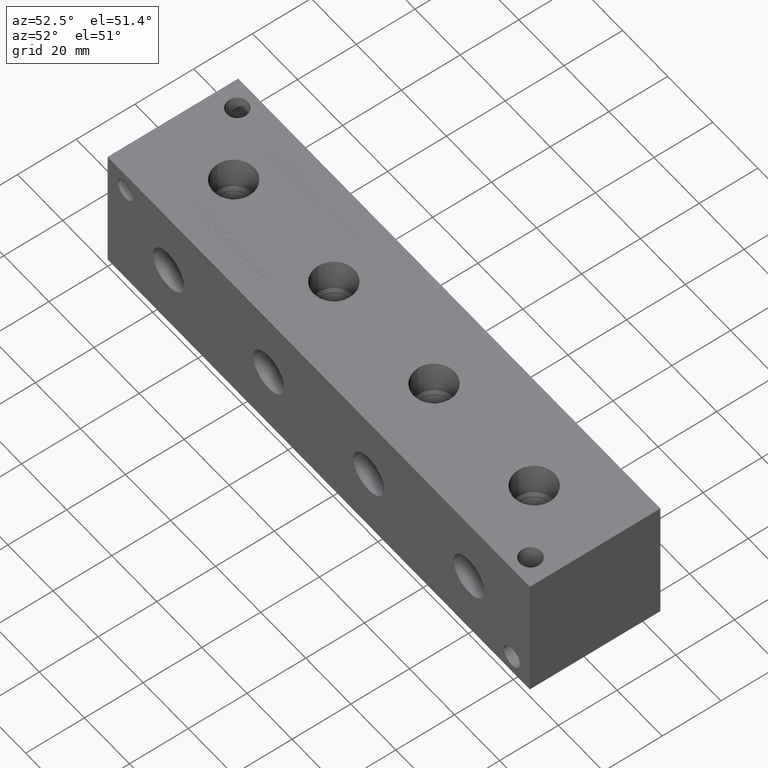
[diagram: clean part render]
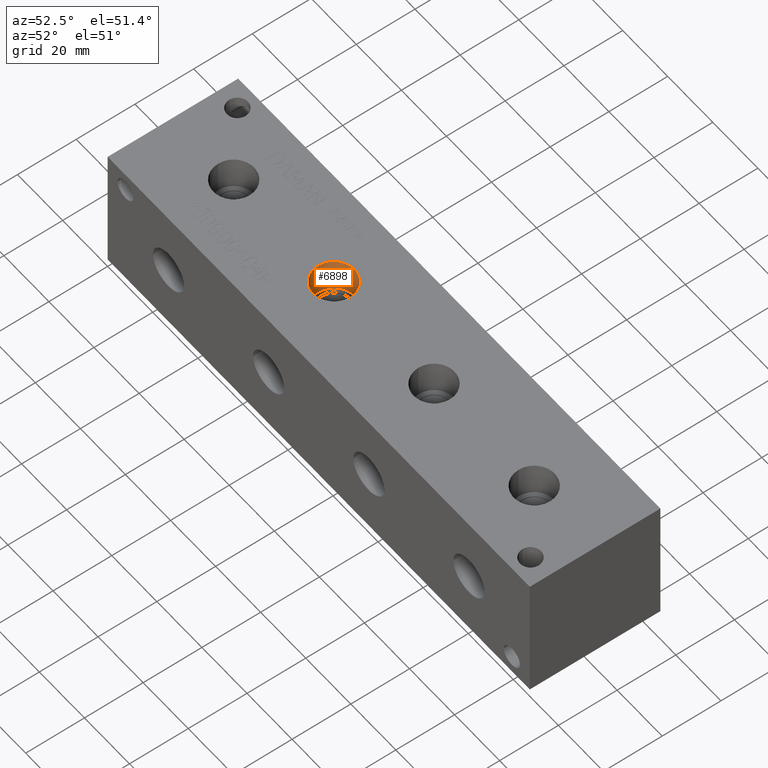
[diagram: same view with one face highlighted and labeled with its STEP entity id]
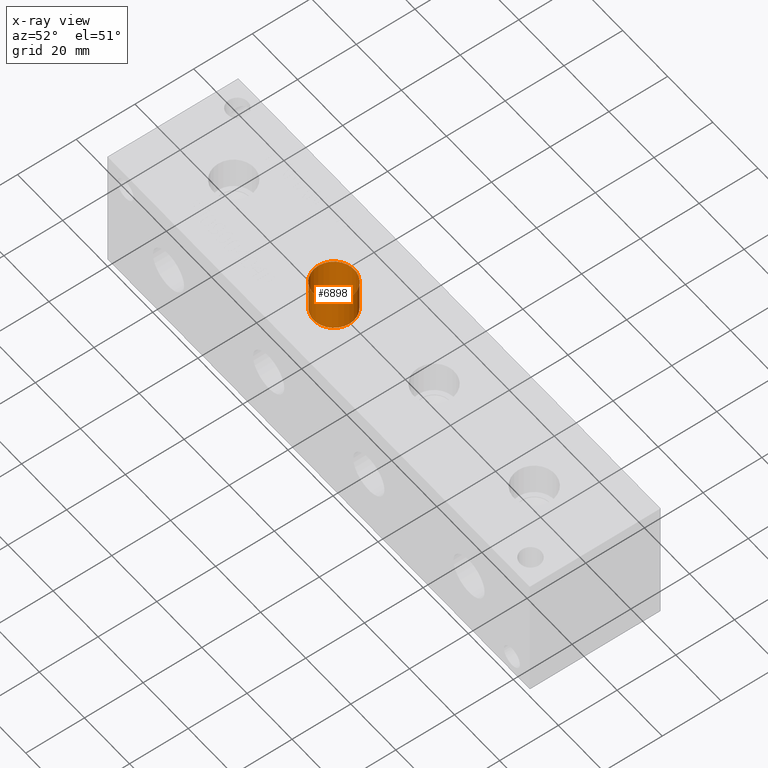
[diagram: x-ray of the same camera — body ghosted, the highlighted face saturated]
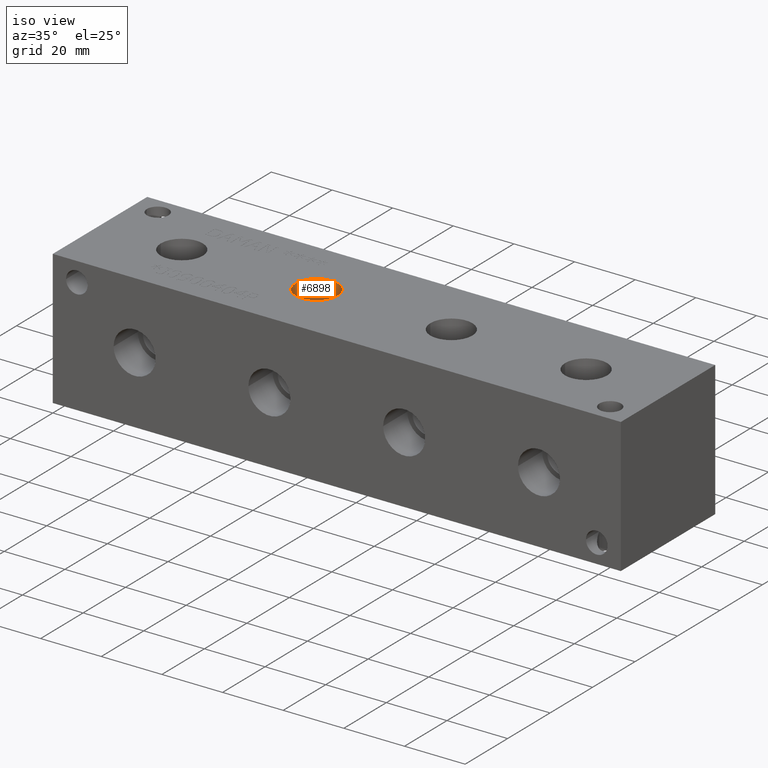
[diagram: same view with one face highlighted and labeled with its STEP entity id]
A machine part, auxiliary view. The second image highlights one B-rep face of the part: STEP entity #6898.
The next image is the same camera in x-ray: the body ghosted, the highlighted face saturated — about 0% of this face is hidden behind the body in this view.
A second angle (iso view) of the same face is appended — the face is thin or edge-on in the first view.
In plain terms, the highlighted cylindrical surface (bore or boss wall) has radius 6.9342 mm, axis along (0, 0, 1).
Its self-contained STEP definition (entity closure, byte-faithful):
#50=CYLINDRICAL_SURFACE('',#7245,6.9342);
#56=CIRCLE('',#7000,6.9342);
#57=CIRCLE('',#7001,6.9342);
#114=CIRCLE('',#7242,6.9342);
#115=CIRCLE('',#7243,6.9342);
#744=FACE_OUTER_BOUND('',#1137,.T.);
#1137=EDGE_LOOP('',(#6110,#6111,#6112,#6113,#6114,#6115));
#1837=LINE('',#11664,#2527);
#2527=VECTOR('',#8585,6.9342);
#3008=VERTEX_POINT('',#10552);
#3009=VERTEX_POINT('',#10553);
#3339=VERTEX_POINT('',#11657);
#3340=VERTEX_POINT('',#11658);
#3787=EDGE_CURVE('',#3008,#3009,#56,.T.);
#3788=EDGE_CURVE('',#3009,#3008,#57,.T.);
#4273=EDGE_CURVE('',#3339,#3340,#114,.T.);
#4274=EDGE_CURVE('',#3340,#3339,#115,.T.);
#4276=EDGE_CURVE('',#3009,#3340,#1837,.T.);
#6110=ORIENTED_EDGE('',*,*,#3787,.F.);
#6111=ORIENTED_EDGE('',*,*,#3788,.F.);
#6112=ORIENTED_EDGE('',*,*,#4276,.T.);
#6113=ORIENTED_EDGE('',*,*,#4273,.F.);
#6114=ORIENTED_EDGE('',*,*,#4274,.F.);
#6115=ORIENTED_EDGE('',*,*,#4276,.F.);
#6898=ADVANCED_FACE('',(#744),#50,.F.);
#7000=AXIS2_PLACEMENT_3D('',#10554,#7689,#7690);
#7001=AXIS2_PLACEMENT_3D('',#10555,#7691,#7692);
#7242=AXIS2_PLACEMENT_3D('',#11659,#8577,#8578);
#7243=AXIS2_PLACEMENT_3D('',#11660,#8579,#8580);
#7245=AXIS2_PLACEMENT_3D('',#11663,#8583,#8584);
#7689=DIRECTION('center_axis',(0.,0.,-1.));
#7690=DIRECTION('ref_axis',(1.,0.,0.));
#7691=DIRECTION('center_axis',(0.,0.,-1.));
#7692=DIRECTION('ref_axis',(1.,0.,0.));
#8577=DIRECTION('center_axis',(0.,0.,1.));
#8578=DIRECTION('ref_axis',(1.,0.,0.));
#8579=DIRECTION('center_axis',(0.,0.,1.));
#8580=DIRECTION('ref_axis',(1.,0.,0.));
#8583=DIRECTION('center_axis',(0.,0.,1.));
#8584=DIRECTION('ref_axis',(1.,0.,0.));
#8585=DIRECTION('',(0.,0.,-1.));
#10552=CARTESIAN_POINT('',(78.359,22.225,44.45));
#10553=CARTESIAN_POINT('',(64.4906,22.225,44.45));
#10554=CARTESIAN_POINT('Origin',(71.4248,22.225,44.45));
#10555=CARTESIAN_POINT('Origin',(71.4248,22.225,44.45));
#11657=CARTESIAN_POINT('',(78.359,22.225,33.0454));
#11658=CARTESIAN_POINT('',(64.4906,22.225,33.0454));
#11659=CARTESIAN_POINT('Origin',(71.4248,22.225,33.0454));
#11660=CARTESIAN_POINT('Origin',(71.4248,22.225,33.0454));
#11663=CARTESIAN_POINT('Origin',(71.4248,22.225,38.7477));
#11664=CARTESIAN_POINT('',(64.4906,22.225,38.7477));